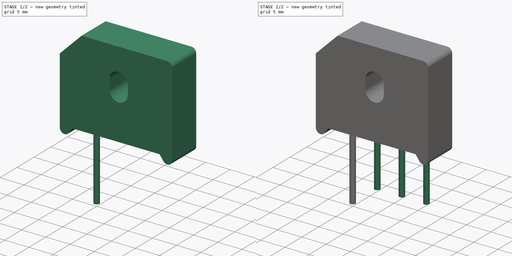
[diagram: build sequence overview — one tinted view per stage of 2, left to right]
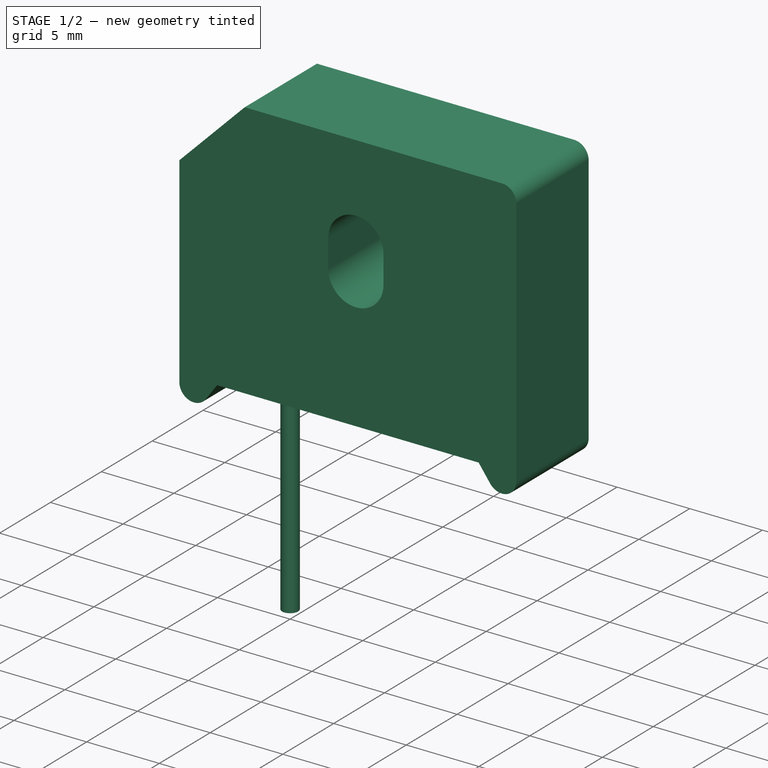
[diagram: stage 1 of 2 — iso view after this stage's code; geometry added in this stage tinted green]
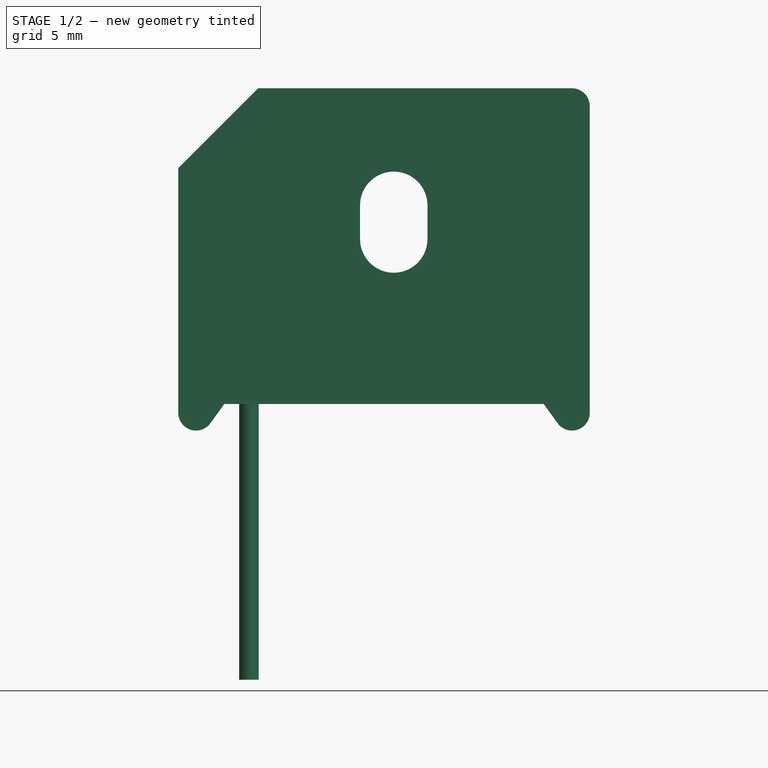
[diagram: stage 1 of 2 — front view after this stage's code; geometry added in this stage tinted green]
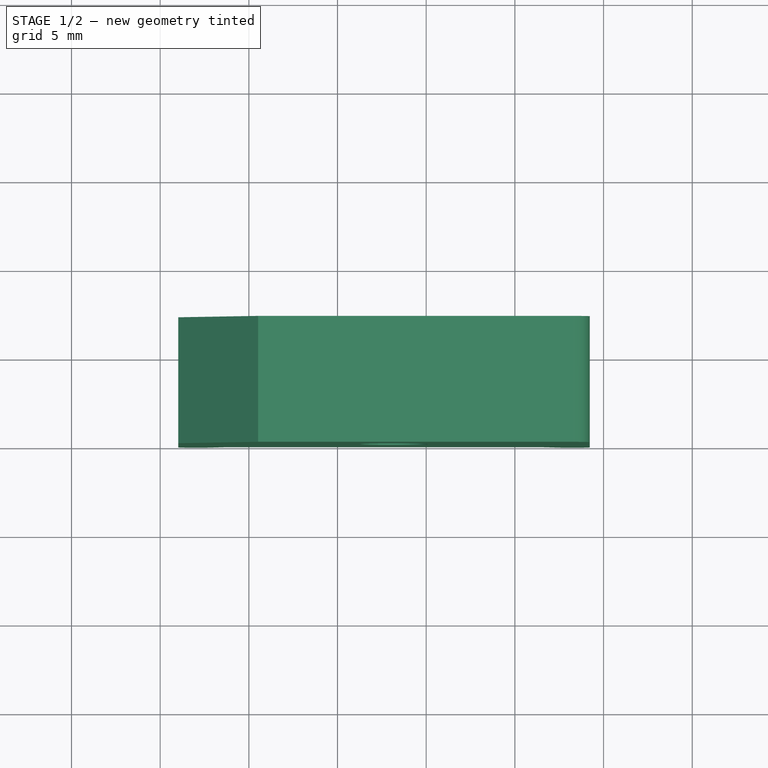
[diagram: stage 1 of 2 — top view after this stage's code; geometry added in this stage tinted green]
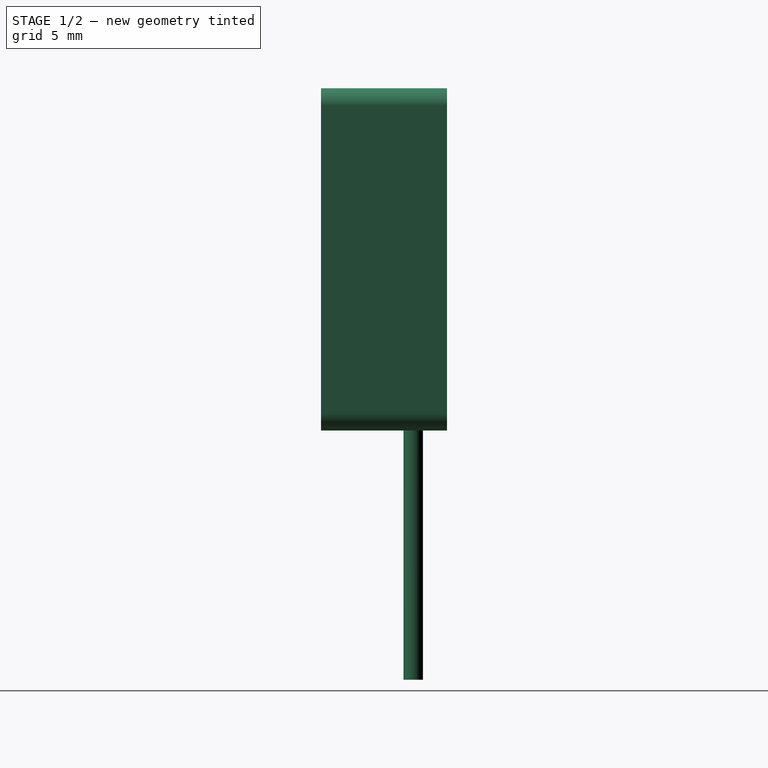
[diagram: stage 1 of 2 — right view after this stage's code; geometry added in this stage tinted green]
FCSTD DOCUMENT  (FreeCAD 0.16R6712 (Git))
Label: Diode_Bridge_Vishay_KBU
License: All rights reserved
LicenseURL: http://en.wikipedia.org/wiki/All_rights_reserved
objects: Sketcher::SketchObject×3, PartDesign::Pad×3, Part::Feature×3, App::DocumentObjectGroup×1, Part::MultiFuse×1
note: 13 computed .brp shape members not serialized (recipe doc carries the construction recipe); baked Part::Feature solids carry a one-line shape summary decoded from their .brp

FEATURE [Sketcher::SketchObject] Sketch002
  Placement = pos=(0,0,4) rot=(0,0,1;3.14159rad)
  expr: Constraints[2] = 0
  sketch-geometry (1):
    g0: Circle CenterX=0 CenterY=0 CenterZ=0 NormalX=0 NormalY=0 NormalZ=1 Radius=0.55
  constraints (3):
    c: PointOnObject(g0,g-1)
    c: Radius(g0) = 0.55
    c: DistanceX(g-1,g0) = 0
FEATURE [PartDesign::Pad] Pad002
  Length = 18
  Length2 = 100
  Placement = pos=(0,0,4) rot=(0,0,1;3.14159rad)
  Reversed = true
  Sketch = -> Sketch002
  Type = 0
FEATURE [Part::Feature] FusionAxisZ1  label="Z"
  shape: bbox 0.8 x 0.8 x 14 mm, 8 faces (baked)
FEATURE [Part::Feature] FusionAxisY1  label="Y"
  Placement = pos=(0,0,0.05) rot=(-1,0,0;1.5708rad)
  shape: bbox 0.8 x 14 x 0.8 mm, 8 faces (baked)
FEATURE [Part::Feature] FusionAxisX1  label="X"
  Placement = pos=(0,-0.05,0) rot=(0,1,0;1.5708rad)
  shape: bbox 14 x 0.8 x 0.8 mm, 8 faces (baked)
FEATURE [App::DocumentObjectGroup] axis
  Group = -> [FusionAxisZ1,FusionAxisY1,FusionAxisX1]
FEATURE [PartDesign::Pad] Pad003
  Length = 1.9
  Length2 = 5.2
  Placement = pos=(0,0,0.05) rot=(0,0.707107,0.707107;3.14159rad)
  Sketch = -> Sketch001
  Type = 4
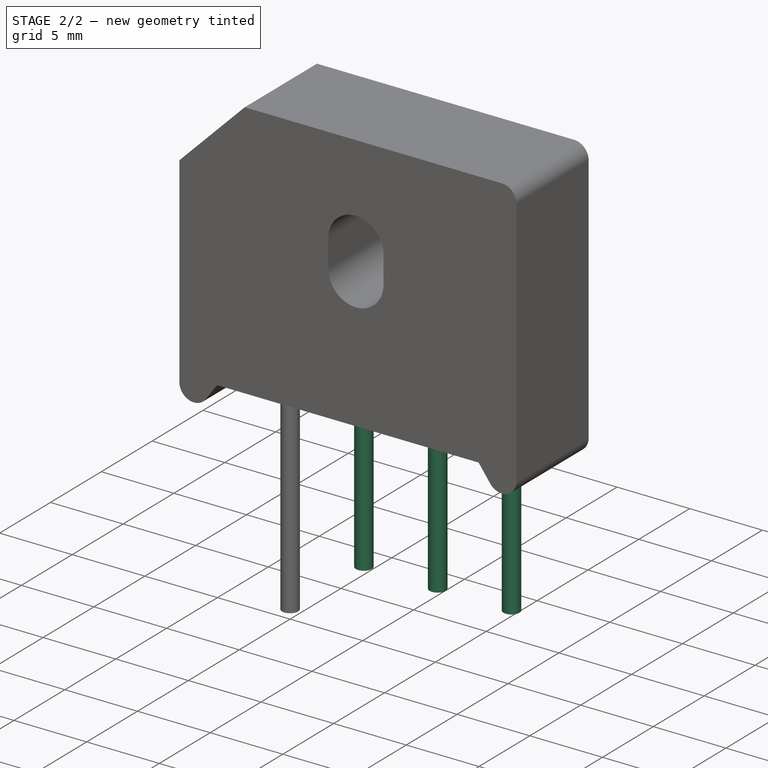
[diagram: stage 2 of 2 — iso view after this stage's code; geometry added in this stage tinted green]
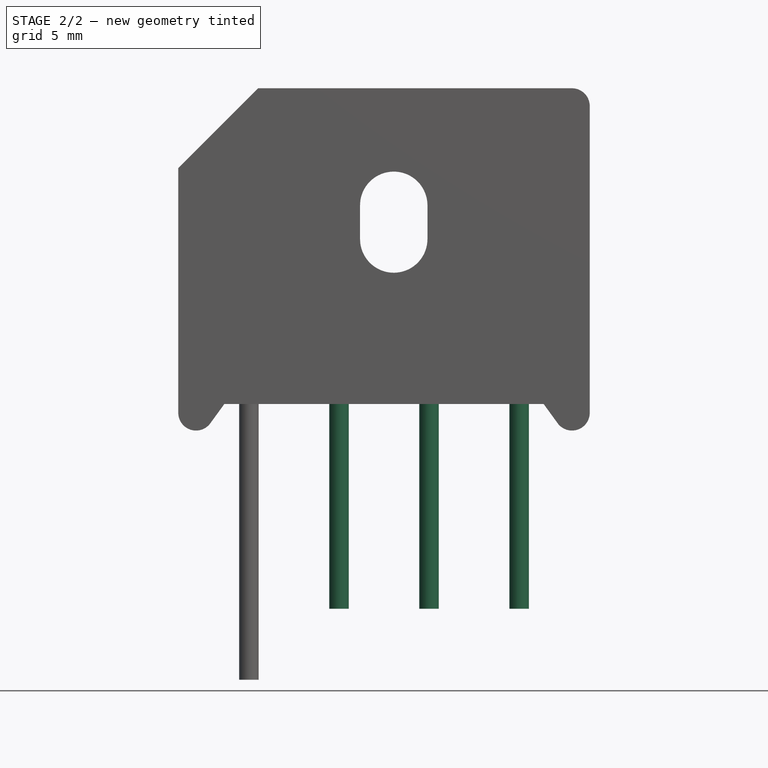
[diagram: stage 2 of 2 — front view after this stage's code; geometry added in this stage tinted green]
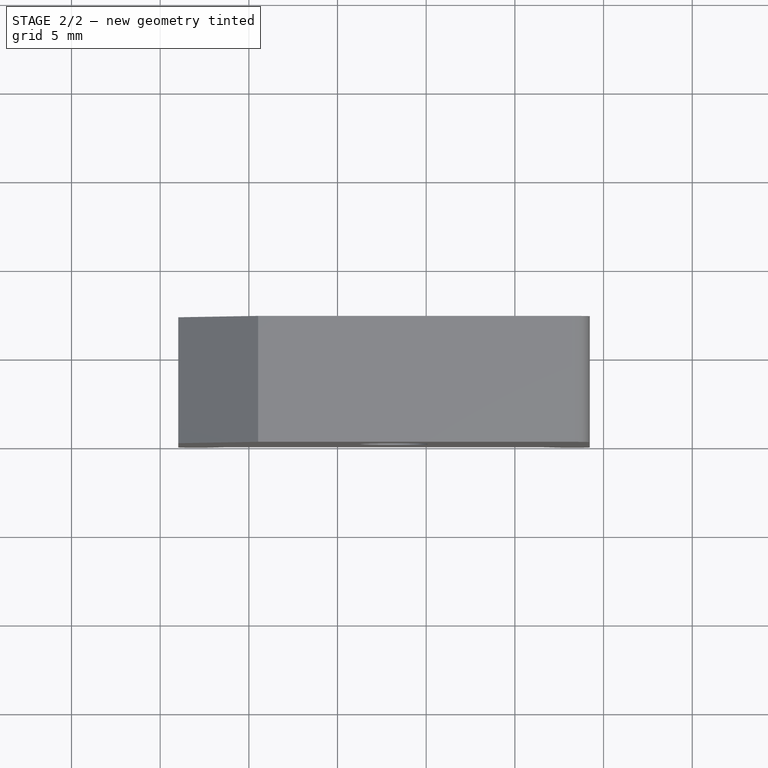
[diagram: stage 2 of 2 — top view after this stage's code; geometry added in this stage tinted green]
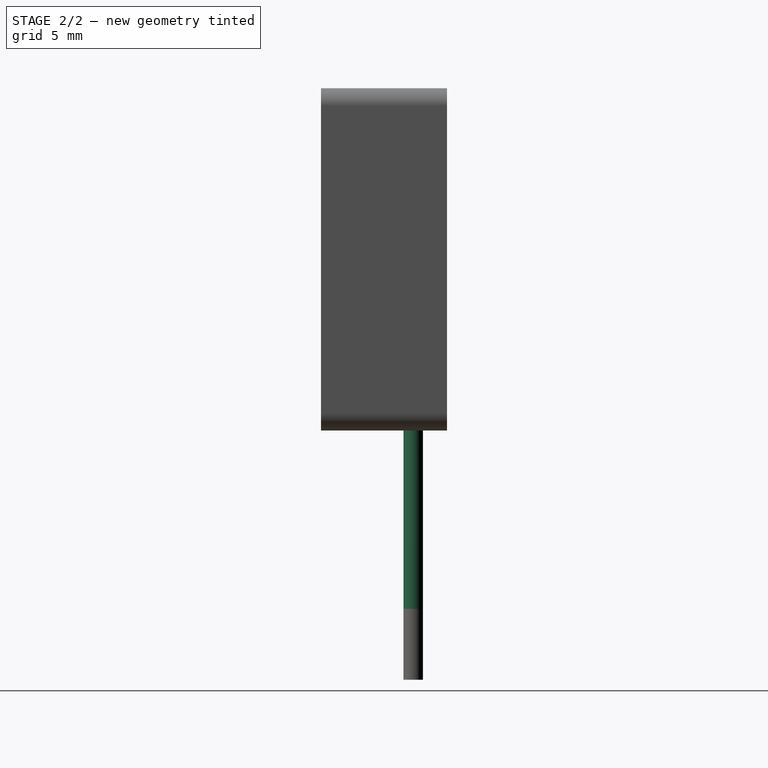
[diagram: stage 2 of 2 — right view after this stage's code; geometry added in this stage tinted green]
FEATURE [Sketcher::SketchObject] Sketch001
  Placement = pos=(0,0,0.05) rot=(0,0.707107,0.707107;3.14159rad)
  expr: Constraints[24] = 22.1 / 2
  expr: Constraints[12] = 23.2 - (23.2 - 3 * 5.08) / 2
  sketch-geometry (16):
    g0: LineSegment StartX=3.98 StartY=0.999766 StartZ=0 EndX=3.98 EndY=14.8 EndZ=0
    g1: LineSegment StartX=3.98 StartY=14.8 StartZ=0 EndX=-0.52 EndY=19.3 EndZ=0
    g2: LineSegment StartX=-0.52 StartY=19.3 StartZ=0 EndX=-18.22 EndY=19.3 EndZ=0
    g3: LineSegment StartX=-19.22 StartY=18.3 StartZ=0 EndX=-19.22 EndY=0.999766 EndZ=0
    g4: ArcOfCircle CenterX=-18.22 CenterY=0.999766 CenterZ=0 NormalX=0 NormalY=0 NormalZ=1 Radius=1 StartAngle=3.14159 EndAngle=4.69074
    g5: ArcOfCircle CenterX=2.98 CenterY=0.999766 CenterZ=0 NormalX=0 NormalY=0 NormalZ=1 Radius=1 StartAngle=4.69074 EndAngle=6.28319
    g6: ArcOfCircle CenterX=-18.22 CenterY=18.3 CenterZ=0 NormalX=0 NormalY=0 NormalZ=1 Radius=1 StartAngle=1.5708 EndAngle=3.14159
    g7: ArcOfCircle CenterX=-8.17 CenterY=12.7 CenterZ=0 NormalX=0 NormalY=0 NormalZ=1 Radius=1.9 StartAngle=0 EndAngle=3.14159
    g8: ArcOfCircle CenterX=-8.17 CenterY=10.8 CenterZ=0 NormalX=0 NormalY=0 NormalZ=1 Radius=1.9 StartAngle=3.14159 EndAngle=6.28319
    g9: LineSegment StartX=-10.07 StartY=12.7 StartZ=0 EndX=-10.07 EndY=10.8 EndZ=0
    g10: LineSegment StartX=-6.27 StartY=12.7 StartZ=0 EndX=-6.27 EndY=10.8 EndZ=0
    g11: ArcOfCircle CenterX=-18.22 CenterY=0.999766 CenterZ=0 NormalX=0 NormalY=0 NormalZ=1 Radius=1 StartAngle=4.69074 EndAngle=5.65456
    g12: LineSegment StartX=-17.4112 StartY=0.411733 StartZ=0 EndX=-16.62 EndY=1.5 EndZ=0
    g13: LineSegment StartX=-16.62 StartY=1.5 StartZ=0 EndX=1.38 EndY=1.5 EndZ=0
    g14: LineSegment StartX=1.38 StartY=1.5 StartZ=0 EndX=2.17116 EndY=0.411733 EndZ=0
    g15: ArcOfCircle CenterX=2.98 CenterY=0.999766 CenterZ=0 NormalX=0 NormalY=0 NormalZ=1 Radius=1 StartAngle=3.77022 EndAngle=4.69074
  constraints (44):
    c: Vertical(g0)
    c: Coincident(g2,g1)
    c: Horizontal(g2)
    c: Vertical(g3)
    c: Coincident(g0,g1)
    c: Angle(g1,g0) = 2.35619
    c: DistanceY(g0,g1) = 4.5
    c: Tangent(g3,g4) = -1.5708
    c: Tangent(g0,g5) = -1.5708
    c: Tangent(g3,g6) = -1.5708
    c: Tangent(g2,g6) = -1.5708
    c: DistanceX(g3,g0) = 23.2
    c: DistanceX(g3,g-1) = 19.22
    c: Equal(g5,g4)
    c: Equal(g4,g6)
    c: Radius(g5) = 1
    c: Tangent(g7,g10) = 1.5708
    c: Tangent(g7,g9) = -1.5708
    c: Tangent(g9,g8) = -1.5708
    c: Tangent(g10,g8) = 1.5708
    c: Vertical(g9)
    c: Equal(g7,g8)
    c: DistanceY(g8,g7) = 1.9
    c: Radius(g8) = 1.9
    c: DistanceX(g3,g8) = 11.05
    c: DistanceY(g4,g2) = 19.3
    c: Coincident(g11,g4)
    c: Coincident(g11,g4)
    c: Coincident(g12,g11)
    c: Coincident(g13,g12)
    c: Horizontal(g13)
    c: Coincident(g14,g13)
    c: Coincident(g15,g5)
    c: Coincident(g15,g5)
    c: Coincident(g15,g14)
    c: DistanceY(g4,g5) = 0
    c: Tangent(g14,g15)
    c: Tangent(g11,g12)
    c: DistanceY(g4,g12) = 1.5
    c: Equal(g14,g12)
    c: DistanceY(g5,g8) = 10.8
    c: DistanceY(g4,g5) = 0
    c: PointOnObject(g4,g-1)
    c: DistanceX(g13,g13) = 18
FEATURE [Sketcher::SketchObject] Sketch
  Placement = pos=(0,0,4) rot=(0,0,1;0rad)
  sketch-geometry (3):
    g0: Circle CenterX=5.08 CenterY=0 CenterZ=0 NormalX=0 NormalY=0 NormalZ=1 Radius=0.55
    g1: Circle CenterX=10.16 CenterY=0 CenterZ=0 NormalX=0 NormalY=0 NormalZ=1 Radius=0.55
    g2: Circle CenterX=15.24 CenterY=0 CenterZ=0 NormalX=0 NormalY=0 NormalZ=1 Radius=0.55
  constraints (9):
    c: PointOnObject(g1,g-1)
    c: PointOnObject(g2,g-1)
    c: Equal(g1,g0)
    c: Equal(g0,g2)
    c: DistanceX(g1,g2) = 5.08
    c: Radius(g2) = 0.55
    c: PointOnObject(g0,g-1)
    c: DistanceX(g0,g1) = 5.08
    c: DistanceX(g-1,g0) = 5.08
FEATURE [PartDesign::Pad] Pad
  Length = 14
  Length2 = 100
  Placement = pos=(0,0,4) rot=(0,0,1;0rad)
  Reversed = true
  Sketch = -> Sketch
  Type = 0
FEATURE [Part::MultiFuse] Pad003_mp_cp  label="Diode_Bridge_Vishay_KBU"
  Shapes = -> [Pad003,Pad,Pad002]
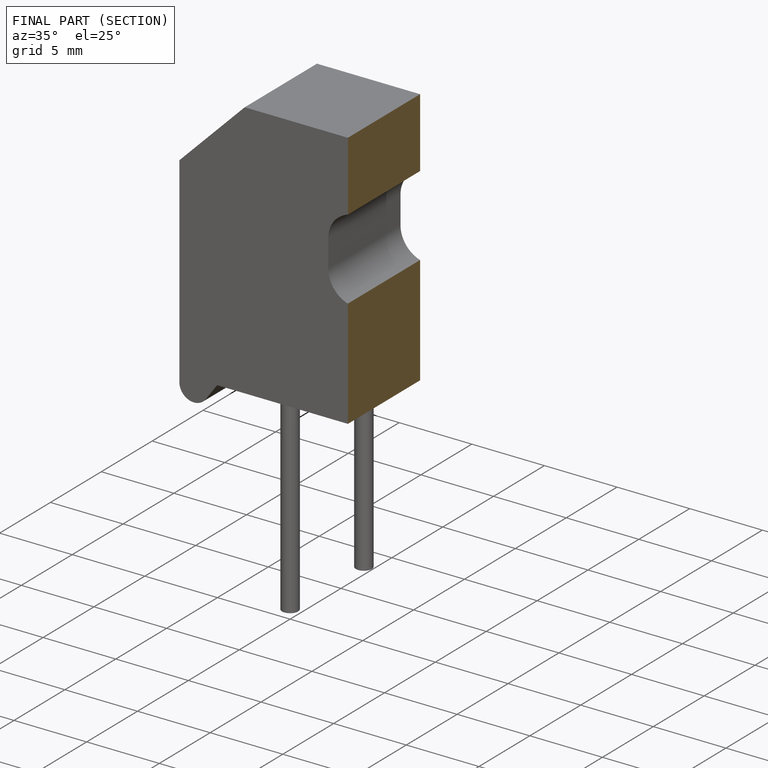
[diagram: finished part — half-section view (interior)]
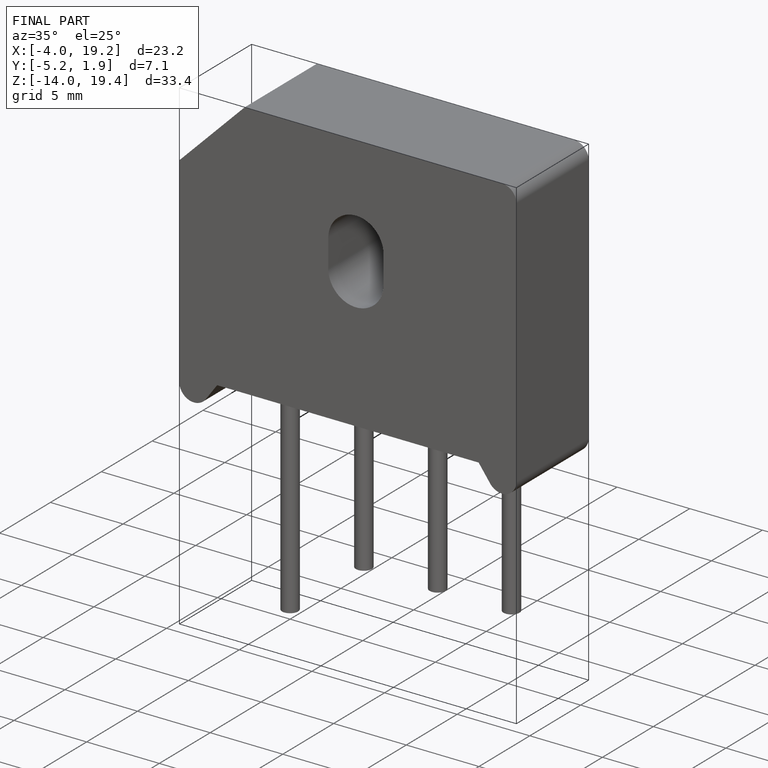
[diagram: finished part — iso view with bounding-box wireframe]
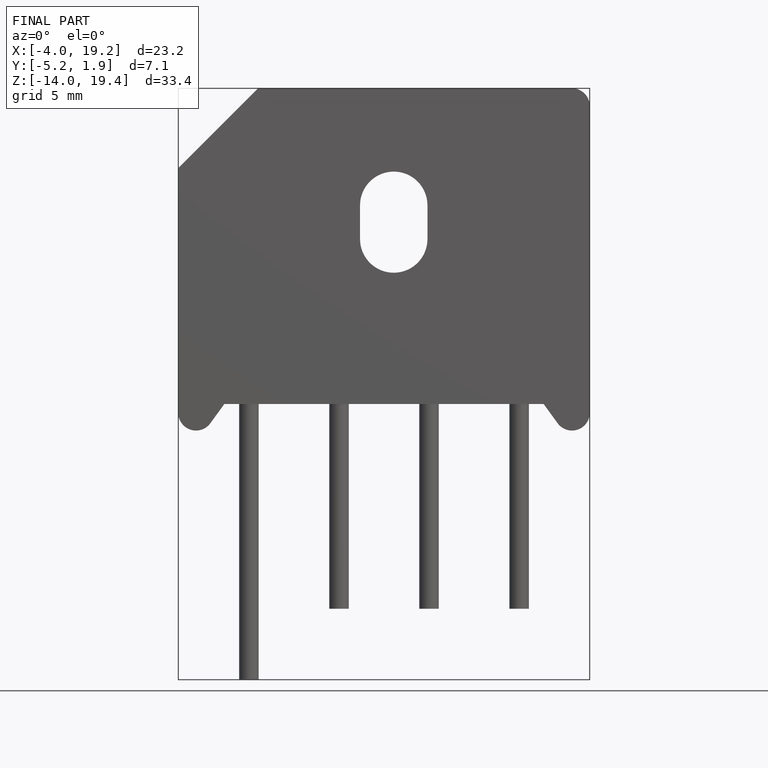
[diagram: finished part — front view with bounding-box wireframe]
